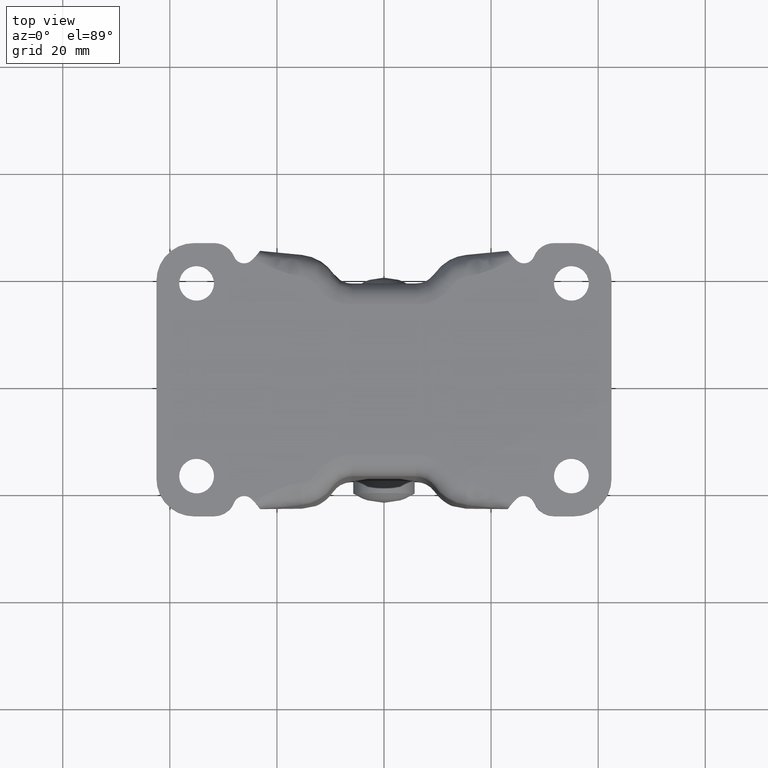
[diagram: clean part render]
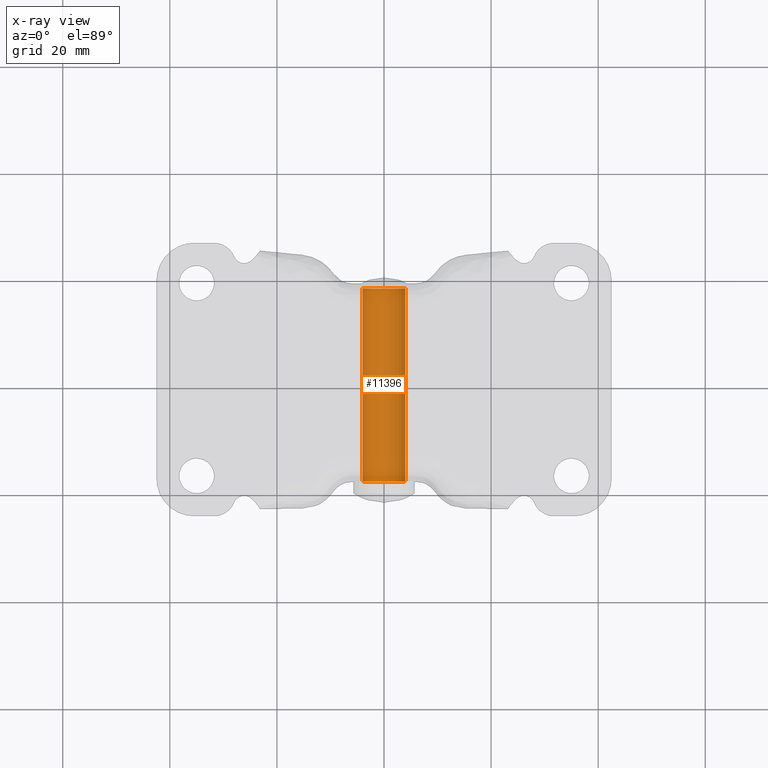
[diagram: x-ray — body ghosted, one internal face saturated and labeled with its STEP entity id]
A machine part, top view, then the same camera in x-ray: the body is ghosted and one INTERNAL B-rep face — a face not visible from any outside direction — is saturated and labeled: STEP entity #11396.
In plain terms, the highlighted face is a freeform B-spline surface patch.
Its self-contained STEP definition (entity closure, byte-faithful):
#11294=CARTESIAN_POINT('',(3.972038105454666,-18.926250020833333,-56.027863061372976));
#11295=CARTESIAN_POINT('',(3.985550461794422,-18.926250020833333,-56.141541085448090));
#11296=CARTESIAN_POINT('',(3.992539193687467,-18.926250020833340,-56.255805841860571));
#11297=CARTESIAN_POINT('',(4.236733351826894,-18.926250020833340,-60.248345035548041));
#11298=CARTESIAN_POINT('',(0.244194158139428,-18.926250020833340,-60.492539193687463));
#11299=CARTESIAN_POINT('',(-3.748345035548039,-18.926250020833340,-60.736733351826899));
#11300=CARTESIAN_POINT('',(-3.992539193687467,-18.926250020833340,-56.744194158139429));
#11301=CARTESIAN_POINT('',(3.972038105454666,18.948782104687517,-56.027863061372976));
#11302=CARTESIAN_POINT('',(3.985550461794422,18.948782104687528,-56.141541085448090));
#11303=CARTESIAN_POINT('',(3.992539193687467,18.948782104687520,-56.255805841860571));
#11304=CARTESIAN_POINT('',(4.236733351826894,18.948782104687524,-60.248345035548041));
#11305=CARTESIAN_POINT('',(0.244194158139428,18.948782104687520,-60.492539193687463));
#11306=CARTESIAN_POINT('',(-3.748345035548039,18.948782104687524,-60.736733351826899));
#11307=CARTESIAN_POINT('',(-3.992539193687467,18.948782104687520,-56.744194158139429));
#11315=(BOUNDED_SURFACE()B_SPLINE_SURFACE(2,1,((#11294,#11301),(#11295,#11302),(#11296,#11303),(#11297,#11304),(#11298,#11305),(#11299,#11306),(#11300,#11307)),.UNSPECIFIED.,.F.,.F.,.U.)B_SPLINE_SURFACE_WITH_KNOTS((3,2,2,3),(2,2),(0.0,0.265096679918781,6.892513677888305,13.519930675857831),(0.0,37.875032125520860),.UNSPECIFIED.)GEOMETRIC_REPRESENTATION_ITEM()RATIONAL_B_SPLINE_SURFACE(((0.977505800795127,0.977505800795127),(0.988284271247462,0.988284271247462),(1.0,1.0),(0.707106781186548,0.707106781186548),(1.0,1.0),(0.707106781186548,0.707106781186548),(1.0,1.0)))REPRESENTATION_ITEM('')SURFACE());
#11316=CARTESIAN_POINT('',(3.972038105430037,-18.024999999999999,-56.027863061165760));
#11317=VERTEX_POINT('',#11316);
#11318=CARTESIAN_POINT('',(0.0,-18.024999999999999,-60.500000000000000));
#11319=VERTEX_POINT('',#11318);
#11320=CARTESIAN_POINT('',(3.972038105430036,-18.024999999999999,-56.027863061165760));
#11321=CARTESIAN_POINT('',(4.000000000000000,-18.024999999999999,-56.263103521182963));
#11322=CARTESIAN_POINT('',(4.0,-18.024999999999999,-56.500000000000000));
#11323=CARTESIAN_POINT('',(4.000000000000000,-18.024999999999999,-60.500000000000000));
#11324=CARTESIAN_POINT('',(0.0,-18.024999999999999,-60.500000000000000));
#11332=(BOUNDED_CURVE()B_SPLINE_CURVE(2,(#11320,#11321,#11322,#11323,#11324),.UNSPECIFIED.,.F.,.U.)B_SPLINE_CURVE_WITH_KNOTS((3,2,3),(0.229562473498012,0.250000000000000,0.500000000000000),.UNSPECIFIED.)CURVE()GEOMETRIC_REPRESENTATION_ITEM()RATIONAL_B_SPLINE_CURVE((0.956026754153327,0.976055948312990,1.0,0.707106781186548,1.0))REPRESENTATION_ITEM(''));
#11333=EDGE_CURVE('',#11317,#11319,#11332,.T.);
#11334=ORIENTED_EDGE('',*,*,#11333,.T.);
#11335=CARTESIAN_POINT('',(-3.992539193671691,-18.024999999999999,-56.744194158397363));
#11336=VERTEX_POINT('',#11335);
#11337=CARTESIAN_POINT('',(0.0,-18.024999999999999,-60.500000000000000));
#11338=CARTESIAN_POINT('',(-3.762824267135684,-18.025000000000002,-60.500000000000000));
#11339=CARTESIAN_POINT('',(-3.992539193671691,-18.024999999999999,-56.744194158397370));
#11347=(BOUNDED_CURVE()B_SPLINE_CURVE(2,(#11337,#11338,#11339),.UNSPECIFIED.,.F.,.U.)B_SPLINE_CURVE_WITH_KNOTS((3,3),(0.500000000000000,0.739332962219674),.UNSPECIFIED.)CURVE()GEOMETRIC_REPRESENTATION_ITEM()RATIONAL_B_SPLINE_CURVE((1.0,0.719603993309285,0.976072041625420))REPRESENTATION_ITEM(''));
#11348=EDGE_CURVE('',#11319,#11336,#11347,.T.);
#11349=ORIENTED_EDGE('',*,*,#11348,.T.);
#11350=CARTESIAN_POINT('',(-3.992539193671692,18.025000833333351,-56.744194158397363));
#11351=VERTEX_POINT('',#11350);
#11352=CARTESIAN_POINT('',(-3.992539193671691,-18.024999999999999,-56.744194158397363));
#11353=CARTESIAN_POINT('',(-3.992539193671692,18.025000833333351,-56.744194158397363));
#11354=QUASI_UNIFORM_CURVE('',1,(#11352,#11353),.UNSPECIFIED.,.F.,.U.);
#11355=EDGE_CURVE('',#11336,#11351,#11354,.T.);
#11356=ORIENTED_EDGE('',*,*,#11355,.T.);
#11357=CARTESIAN_POINT('',(0.0,18.025000833333351,-60.500000000000000));
#11358=VERTEX_POINT('',#11357);
#11359=CARTESIAN_POINT('',(0.0,18.025000833333351,-60.500000000000000));
#11360=CARTESIAN_POINT('',(-3.762824267135684,18.025000833333358,-60.500000000000000));
#11361=CARTESIAN_POINT('',(-3.992539193671692,18.025000833333355,-56.744194158397370));
#11369=(BOUNDED_CURVE()B_SPLINE_CURVE(2,(#11359,#11360,#11361),.UNSPECIFIED.,.F.,.U.)B_SPLINE_CURVE_WITH_KNOTS((3,3),(0.500000000000000,0.739332962219674),.UNSPECIFIED.)CURVE()GEOMETRIC_REPRESENTATION_ITEM()RATIONAL_B_SPLINE_CURVE((1.0,0.719603993309285,0.976072041625420))REPRESENTATION_ITEM(''));
#11370=EDGE_CURVE('',#11358,#11351,#11369,.T.);
#11371=ORIENTED_EDGE('',*,*,#11370,.F.);
#11372=CARTESIAN_POINT('',(3.972038105430037,18.025000833333340,-56.027863061165768));
#11373=VERTEX_POINT('',#11372);
#11374=CARTESIAN_POINT('',(3.972038105430037,18.025000833333344,-56.027863061165760));
#11375=CARTESIAN_POINT('',(4.000000000000000,18.025000833333351,-56.263103521182970));
#11376=CARTESIAN_POINT('',(4.0,18.025000833333351,-56.500000000000000));
#11377=CARTESIAN_POINT('',(4.000000000000000,18.025000833333344,-60.500000000000000));
#11378=CARTESIAN_POINT('',(0.0,18.025000833333351,-60.500000000000000));
#11386=(BOUNDED_CURVE()B_SPLINE_CURVE(2,(#11374,#11375,#11376,#11377,#11378),.UNSPECIFIED.,.F.,.U.)B_SPLINE_CURVE_WITH_KNOTS((3,2,3),(0.229562473498013,0.250000000000000,0.500000000000000),.UNSPECIFIED.)CURVE()GEOMETRIC_REPRESENTATION_ITEM()RATIONAL_B_SPLINE_CURVE((0.956026754153327,0.976055948312991,1.0,0.707106781186548,1.0))REPRESENTATION_ITEM(''));
#11387=EDGE_CURVE('',#11373,#11358,#11386,.T.);
#11388=ORIENTED_EDGE('',*,*,#11387,.F.);
#11389=CARTESIAN_POINT('',(3.972038105430037,-18.024999999999999,-56.027863061165760));
#11390=CARTESIAN_POINT('',(3.972038105430037,18.025000833333340,-56.027863061165768));
#11391=QUASI_UNIFORM_CURVE('',1,(#11389,#11390),.UNSPECIFIED.,.F.,.U.);
#11392=EDGE_CURVE('',#11317,#11373,#11391,.T.);
#11393=ORIENTED_EDGE('',*,*,#11392,.F.);
#11394=EDGE_LOOP('',(#11334,#11349,#11356,#11371,#11388,#11393));
#11395=FACE_OUTER_BOUND('',#11394,.T.);
#11396=ADVANCED_FACE('',(#11395),#11315,.T.);